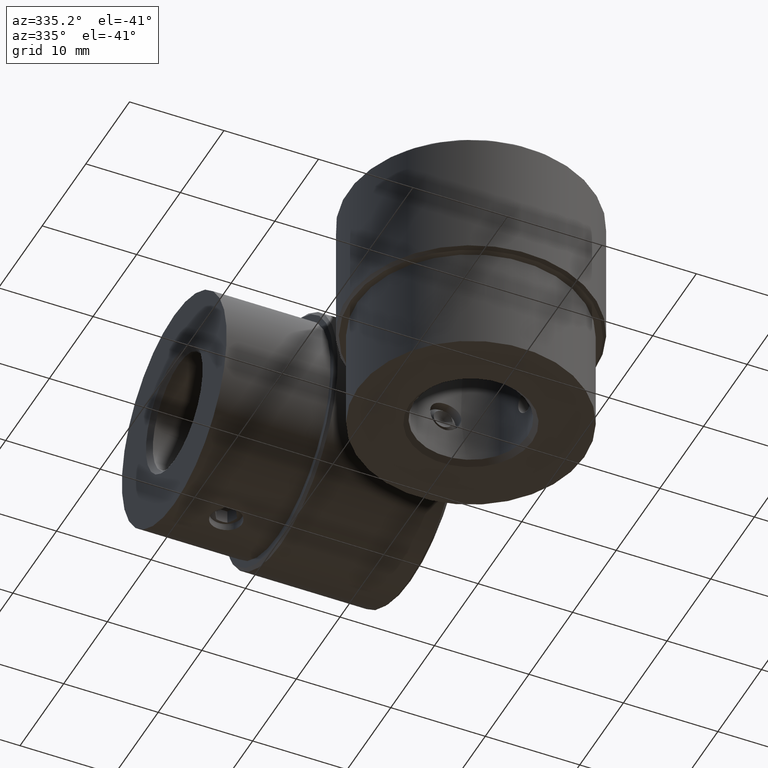
[diagram: clean part render]
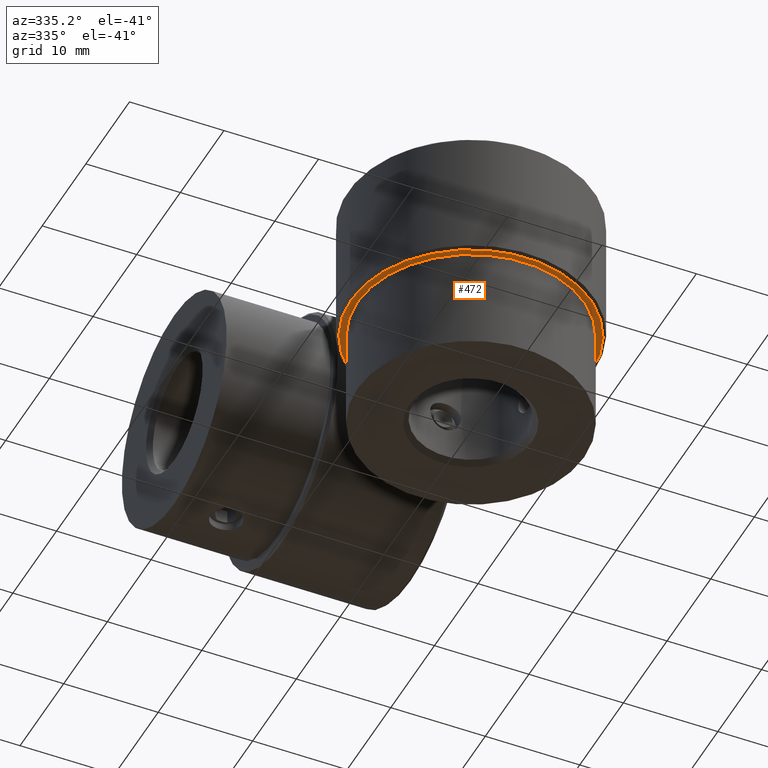
[diagram: same view with one face highlighted and labeled with its STEP entity id]
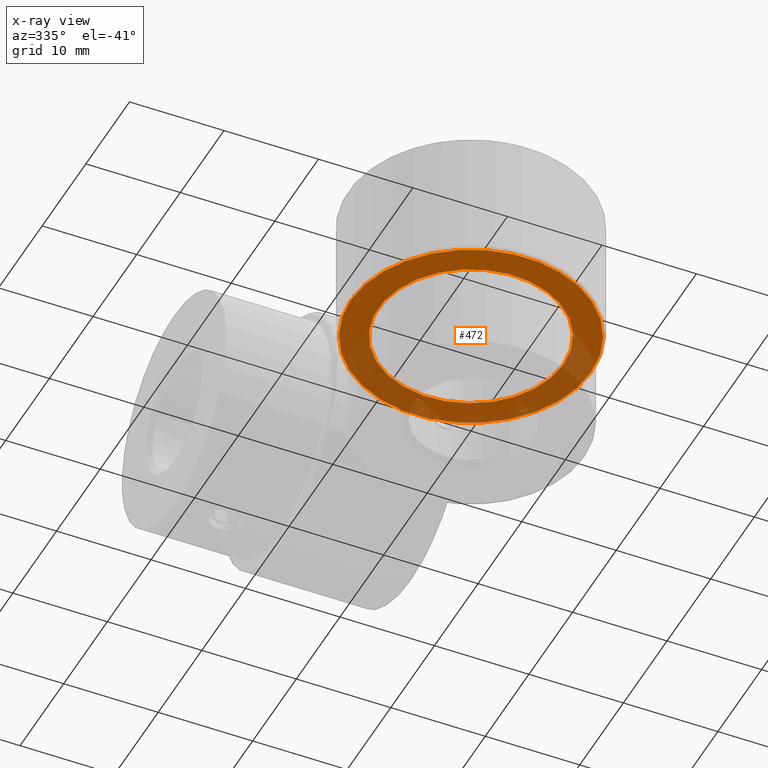
[diagram: x-ray of the same camera — body ghosted, the highlighted face saturated]
A machine part, auxiliary view. The second image highlights one B-rep face of the part: STEP entity #472.
The next image is the same camera in x-ray: the body ghosted, the highlighted face saturated — about 36% of this face is hidden behind the body in this view.
In plain terms, the highlighted planar face has unit normal (0, 0, 1).
Its self-contained STEP definition (entity closure, byte-faithful):
#472 = ADVANCED_FACE( '', ( #599, #600 ), #601, .F. );
#599 = FACE_BOUND( '', #825, .T. );
#600 = FACE_OUTER_BOUND( '', #826, .T. );
#601 = PLANE( '', #827 );
#825 = EDGE_LOOP( '', ( #1085 ) );
#826 = EDGE_LOOP( '', ( #1086 ) );
#827 = AXIS2_PLACEMENT_3D( '', #1087, #1088, #1089 );
#1085 = ORIENTED_EDGE( '', *, *, #1516, .T. );
#1086 = ORIENTED_EDGE( '', *, *, #1513, .T. );
#1087 = CARTESIAN_POINT( '', ( 0.000000000000000, 0.000000000000000, -14.0000000000000 ) );
#1088 = DIRECTION( '', ( 0.000000000000000, 0.000000000000000, 1.00000000000000 ) );
#1089 = DIRECTION( '', ( 1.00000000000000, 0.000000000000000, 0.000000000000000 ) );
#1513 = EDGE_CURVE( '', #1658, #1658, #1659, .F. );
#1516 = EDGE_CURVE( '', #1664, #1664, #1665, .T. );
#1658 = VERTEX_POINT( '', #2098 );
#1659 = CIRCLE( '', #2099, 12.7000000000000 );
#1664 = VERTEX_POINT( '', #2104 );
#1665 = CIRCLE( '', #2105, 9.80000000000000 );
#2098 = CARTESIAN_POINT( '', ( 12.7000000000000, 0.000000000000000, -14.0000000000000 ) );
#2099 = AXIS2_PLACEMENT_3D( '', #2709, #2710, #2711 );
#2104 = CARTESIAN_POINT( '', ( 9.80000000000000, 0.000000000000000, -14.0000000000000 ) );
#2105 = AXIS2_PLACEMENT_3D( '', #2718, #2719, #2720 );
#2709 = CARTESIAN_POINT( '', ( 0.000000000000000, 0.000000000000000, -14.0000000000000 ) );
#2710 = DIRECTION( '', ( 0.000000000000000, 0.000000000000000, 1.00000000000000 ) );
#2711 = DIRECTION( '', ( 1.00000000000000, 0.000000000000000, -0.000000000000000 ) );
#2718 = CARTESIAN_POINT( '', ( 0.000000000000000, 0.000000000000000, -14.0000000000000 ) );
#2719 = DIRECTION( '', ( 0.000000000000000, 0.000000000000000, 1.00000000000000 ) );
#2720 = DIRECTION( '', ( 1.00000000000000, 0.000000000000000, -0.000000000000000 ) );